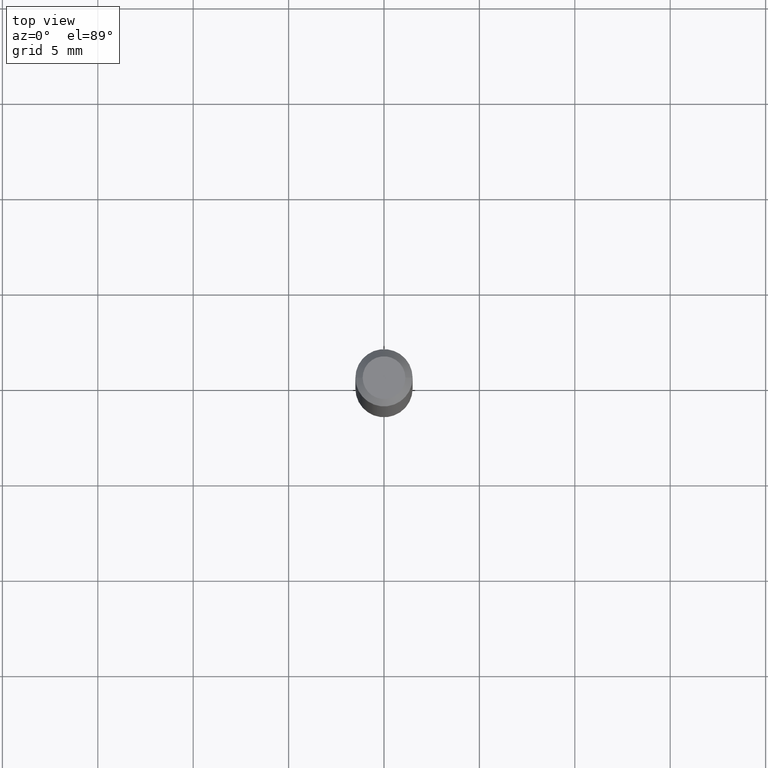
[diagram: clean part render]
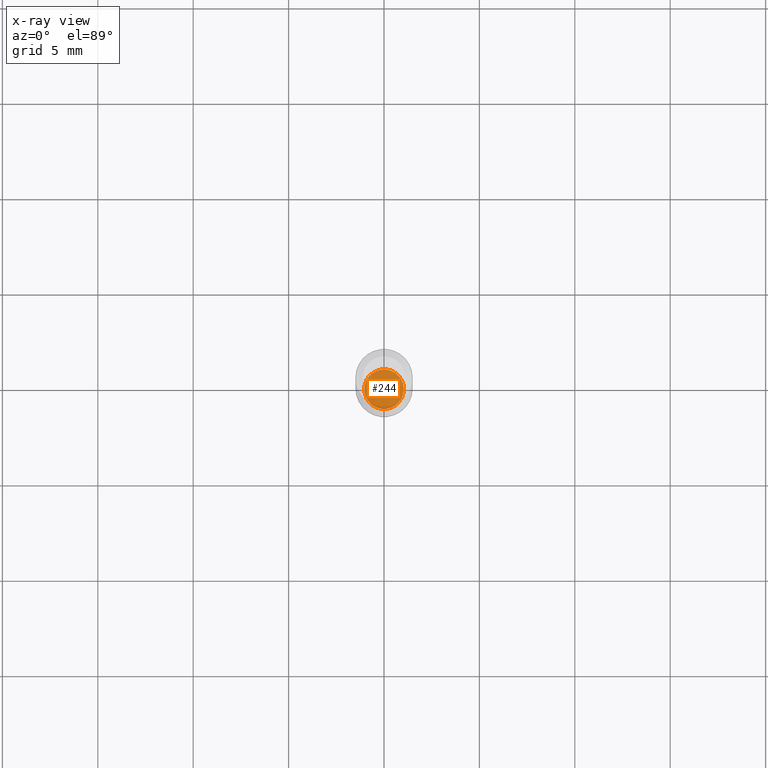
[diagram: x-ray — body ghosted, one internal face saturated and labeled with its STEP entity id]
A machine part, top view, then the same camera in x-ray: the body is ghosted and one INTERNAL B-rep face — a face not visible from any outside direction — is saturated and labeled: STEP entity #244.
In plain terms, the highlighted planar face has unit normal (-0, 0, 1).
Its self-contained STEP definition (entity closure, byte-faithful):
#41 = DIRECTION ( 'NONE',  ( 1.000000000000000000, -6.982962677686261189E-15, 0.000000000000000000 ) ) ;
#62 = CIRCLE ( 'NONE', #292, 0.04084999999999999742 ) ;
#66 = CARTESIAN_POINT ( 'NONE',  ( -0.04084999999999999742, -4.511023239382173499E-15, -1.375900000000000123 ) ) ;
#70 = CARTESIAN_POINT ( 'NONE',  ( 0.04084999999999999742, -5.089183199497769152E-15, -1.375900000000000123 ) ) ;
#105 = DIRECTION ( 'NONE',  ( 1.000000000000000000, -6.982962677686265922E-15, 4.876176775795935793E-29 ) ) ;
#106 = VERTEX_POINT ( 'NONE', #66 ) ;
#113 = CARTESIAN_POINT ( 'NONE',  ( 3.364720530430130200E-29, -4.803929174114285214E-15, -1.375900000000000123 ) ) ;
#115 = PLANE ( 'NONE',  #427 ) ;
#156 = ORIENTED_EDGE ( 'NONE', *, *, #428, .F. ) ;
#171 = EDGE_LOOP ( 'NONE', ( #375, #156 ) ) ;
#182 = CIRCLE ( 'NONE', #456, 0.04084999999999999742 ) ;
#211 = DIRECTION ( 'NONE',  ( -2.445468806185136597E-29, 3.491481338843145583E-15, 1.000000000000000000 ) ) ;
#220 = DIRECTION ( 'NONE',  ( -2.445468806185136597E-29, 3.491481338843145583E-15, 1.000000000000000000 ) ) ;
#244 = ADVANCED_FACE ( 'NONE', ( #431 ), #115, .F. ) ;
#265 = CARTESIAN_POINT ( 'NONE',  ( 3.364720530430130200E-29, -4.803929174114285214E-15, -1.375900000000000123 ) ) ;
#290 = EDGE_CURVE ( 'NONE', #296, #106, #62, .T. ) ;
#292 = AXIS2_PLACEMENT_3D ( 'NONE', #113, #211, #41 ) ;
#296 = VERTEX_POINT ( 'NONE', #70 ) ;
#328 = DIRECTION ( 'NONE',  ( -2.438088387897960049E-29, 3.491481338843145188E-15, 1.000000000000000000 ) ) ;
#358 = CARTESIAN_POINT ( 'NONE',  ( 3.364720530430130200E-29, -4.803929174114285214E-15, -1.375900000000000123 ) ) ;
#375 = ORIENTED_EDGE ( 'NONE', *, *, #290, .F. ) ;
#407 = DIRECTION ( 'NONE',  ( 1.000000000000000000, -6.982962677686261189E-15, 0.000000000000000000 ) ) ;
#427 = AXIS2_PLACEMENT_3D ( 'NONE', #358, #328, #105 ) ;
#428 = EDGE_CURVE ( 'NONE', #106, #296, #182, .T. ) ;
#431 = FACE_OUTER_BOUND ( 'NONE', #171, .T. ) ;
#456 = AXIS2_PLACEMENT_3D ( 'NONE', #265, #220, #407 ) ;